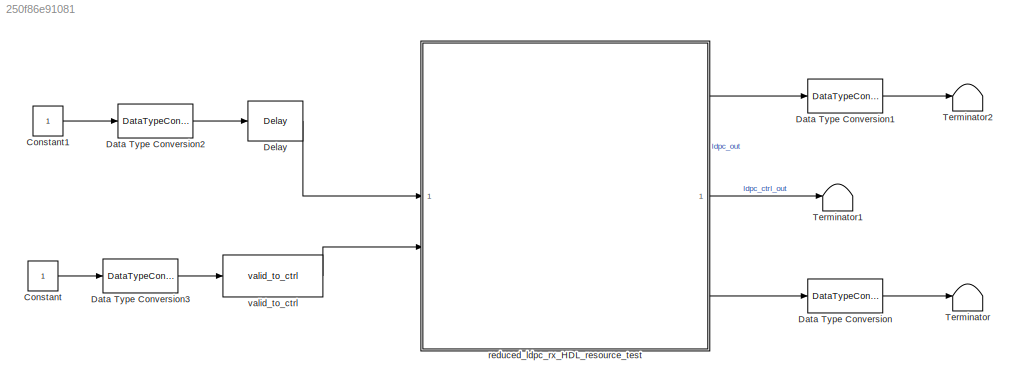
MODEL slx_250f86e91081
KIND model
CONFIG AbsTol = auto
CONFIG EnableMultiTasking = off
CONFIG FixedStep = auto
CONFIG MaxStep = auto
CONFIG MinStep = auto
CONFIG RelTol = 1e-3
CONFIG SampleTimeConstraint = Unconstrained
CONFIG SolverName = FixedStepDiscrete
CONFIG StartTime = 0.0
CONFIG StopTime = 300/fs
BLOCK [Constant] Constant
  SampleTime = 1/fs
BLOCK [Constant] Constant1
  SampleTime = 1/fs
BLOCK [DataTypeConversion] Data Type Conversion
  OutDataTypeStr = boolean
  RndMeth = Floor
  SaturateOnIntegerOverflow = off
BLOCK [DataTypeConversion] Data Type Conversion1
  OutDataTypeStr = boolean
  RndMeth = Floor
  SaturateOnIntegerOverflow = off
BLOCK [DataTypeConversion] Data Type Conversion2
  OutDataTypeStr = fixdt(1,16,12)
  RndMeth = Floor
  SaturateOnIntegerOverflow = off
BLOCK [DataTypeConversion] Data Type Conversion3
  OutDataTypeStr = boolean
  RndMeth = Floor
  SaturateOnIntegerOverflow = off
BLOCK [Delay] Delay
  DelayLength = 1
  InitialCondition = 0
  InputPortMap = u0
  UseCircularBuffer = on
  UserDataPersistent = on
BLOCK [Terminator] Terminator
BLOCK [Terminator] Terminator1
BLOCK [Terminator] Terminator2
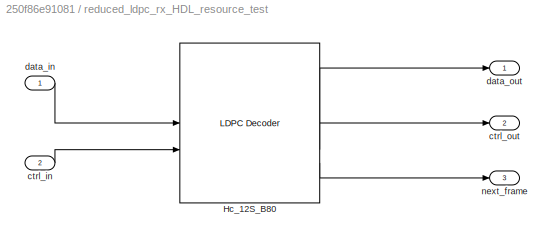
BLOCK [SubSystem] reduced_ldpc_rx_HDL_resource_test
  TreatAsAtomicUnit = on
BLOCK [Reference] reduced_ldpc_rx_HDL_resource_test/Hc_12S_B80  REF=whdledac/LDPC Decoder
  SourceBlock = whdledac/LDPC Decoder
  SourceType = LDPC Decoder
BLOCK [Inport] reduced_ldpc_rx_HDL_resource_test/ctrl_in
  Port = 2
BLOCK [Outport] reduced_ldpc_rx_HDL_resource_test/ctrl_out
  Port = 2
BLOCK [Inport] reduced_ldpc_rx_HDL_resource_test/data_in
BLOCK [Outport] reduced_ldpc_rx_HDL_resource_test/data_out
BLOCK [Outport] reduced_ldpc_rx_HDL_resource_test/next_frame
  Port = 3
  VectorParamsAs1DForOutWhenUnconnected = off
BLOCK [Reference] valid_to_ctrl  REF=HDL_ieee_8021513/valid_to_ctrl
  SourceBlock = HDL_ieee_8021513/valid_to_ctrl
  SourceProductName = HDL IEEE 8021513
  SourceType = SubSystem
LINE Constant1:1 -> Data Type Conversion2:1
LINE Constant:1 -> Data Type Conversion3:1
LINE Data Type Conversion1:1 -> Terminator2:1
LINE Data Type Conversion2:1 -> Delay:1
LINE Data Type Conversion3:1 -> valid_to_ctrl:1
LINE Data Type Conversion:1 -> Terminator:1
LINE Delay:1 -> reduced_ldpc_rx_HDL_resource_test:1
LINE reduced_ldpc_rx_HDL_resource_test/Hc_12S_B80:1 -> reduced_ldpc_rx_HDL_resource_test/data_out:1
LINE reduced_ldpc_rx_HDL_resource_test/Hc_12S_B80:2 -> reduced_ldpc_rx_HDL_resource_test/ctrl_out:1
LINE reduced_ldpc_rx_HDL_resource_test/Hc_12S_B80:3 -> reduced_ldpc_rx_HDL_resource_test/next_frame:1
LINE reduced_ldpc_rx_HDL_resource_test/ctrl_in:1 -> reduced_ldpc_rx_HDL_resource_test/Hc_12S_B80:2
LINE reduced_ldpc_rx_HDL_resource_test/data_in:1 -> reduced_ldpc_rx_HDL_resource_test/Hc_12S_B80:1
LINE reduced_ldpc_rx_HDL_resource_test:1 -> Data Type Conversion1:1
LINE reduced_ldpc_rx_HDL_resource_test:2 -> Terminator1:1
LINE reduced_ldpc_rx_HDL_resource_test:3 -> Data Type Conversion:1
LINE valid_to_ctrl:1 -> reduced_ldpc_rx_HDL_resource_test:2
